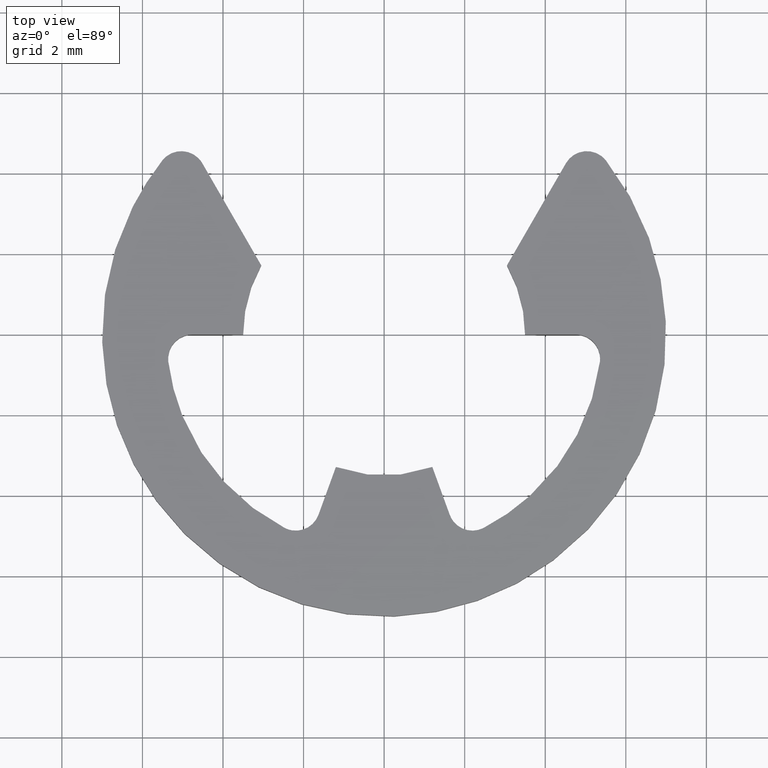
[diagram: clean part render]
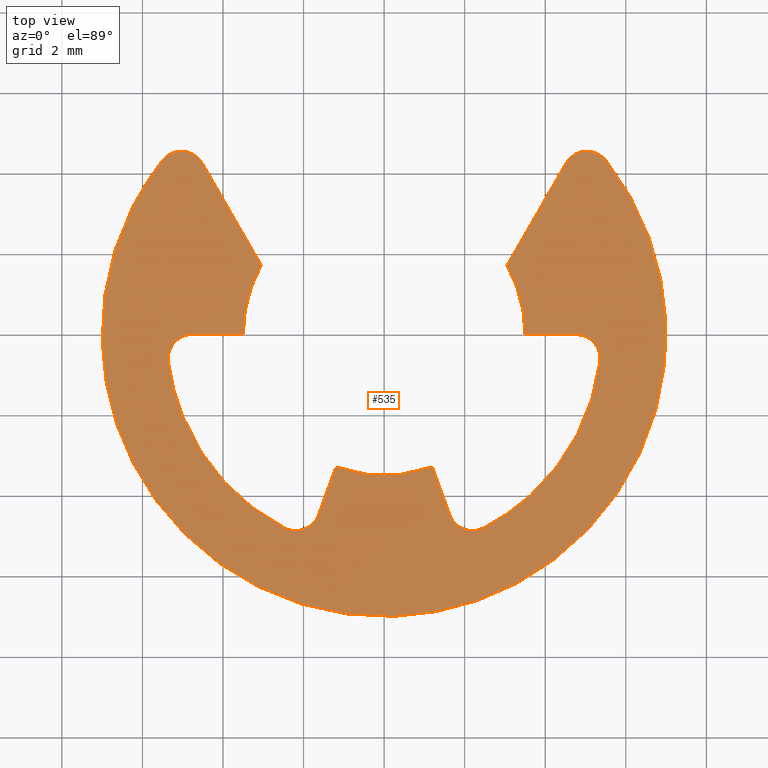
[diagram: same view with one face highlighted and labeled with its STEP entity id]
A machine part, top view. The second image highlights one B-rep face of the part: STEP entity #535.
In plain terms, the highlighted face is a freeform B-spline surface patch.
Its self-contained STEP definition (entity closure, byte-faithful):
#290=CARTESIAN_POINT('',(-7.680830195951259,-7.577049522920409,0.799988000000099));
#291=CARTESIAN_POINT('',(7.680830192763075,-7.577049522920409,0.799988000000099));
#292=CARTESIAN_POINT('',(-7.680830195951259,5.129593282450013,0.799988000000099));
#293=CARTESIAN_POINT('',(7.680830192763075,5.129593282450013,0.799988000000099));
#294=B_SPLINE_SURFACE_WITH_KNOTS('',1,1,((#290,#292),(#291,#293)),.UNSPECIFIED.,.F.,.F.,.U.,(2,2),(2,2),(0.0,15.361660388714339),(0.0,12.706642805370420),.UNSPECIFIED.);
#295=CARTESIAN_POINT('',(-5.505520051458170,4.323106401997531,0.799988000000140));
#296=VERTEX_POINT('',#295);
#297=CARTESIAN_POINT('',(-4.514004000000000,4.252556000000000,0.799988000000140));
#298=VERTEX_POINT('',#297);
#299=CARTESIAN_POINT('',(-5.505520051458169,4.323106401997530,0.799988000000140));
#300=CARTESIAN_POINT('',(-5.308784917364946,4.573650599816963,0.799988000000140));
#301=CARTESIAN_POINT('',(-4.991033556247954,4.551041297396017,0.799988000000140));
#302=CARTESIAN_POINT('',(-4.673282195130962,4.528431994975072,0.799988000000140));
#303=CARTESIAN_POINT('',(-4.514004000000000,4.252556000000000,0.799988000000140));
#311=(BOUNDED_CURVE()B_SPLINE_CURVE(2,(#299,#300,#301,#302,#303),.UNSPECIFIED.,.F.,.U.)B_SPLINE_CURVE_WITH_KNOTS((3,2,3),(0.0,0.500000000000000,1.0),.UNSPECIFIED.)CURVE()GEOMETRIC_REPRESENTATION_ITEM()RATIONAL_B_SPLINE_CURVE((1.0,0.883234793916496,1.0,0.883234793916496,1.0))REPRESENTATION_ITEM(''));
#312=EDGE_CURVE('',#296,#298,#311,.T.);
#313=ORIENTED_EDGE('',*,*,#312,.F.);
#314=CARTESIAN_POINT('',(5.505519803872589,4.323106717300275,0.799988000000140));
#315=VERTEX_POINT('',#314);
#316=CARTESIAN_POINT('',(5.505519803872588,4.323106717300274,0.799988000000140));
#317=CARTESIAN_POINT('',(9.496636180435846,-0.759620054814019,0.799988000000140));
#318=CARTESIAN_POINT('',(4.748318226620992,-5.143294082466886,0.799988000000140));
#319=CARTESIAN_POINT('',(0.000000272806137,-9.526968110119752,0.799988000000140));
#320=CARTESIAN_POINT('',(-4.748317932063014,-5.143294354404462,0.799988000000140));
#321=CARTESIAN_POINT('',(-9.496636136932169,-0.759620598689168,0.799988000000140));
#322=CARTESIAN_POINT('',(-5.505520051458172,4.323106401997528,0.799988000000140));
#330=(BOUNDED_CURVE()B_SPLINE_CURVE(2,(#316,#317,#318,#319,#320,#321,#322),.UNSPECIFIED.,.F.,.U.)B_SPLINE_CURVE_WITH_KNOTS((3,2,2,3),(0.0,0.333333333333333,0.666666666666667,1.0),.UNSPECIFIED.)CURVE()GEOMETRIC_REPRESENTATION_ITEM()RATIONAL_B_SPLINE_CURVE((1.0,0.734756316919382,1.0,0.734756316919382,1.0,0.734756316919382,1.0))REPRESENTATION_ITEM(''));
#331=EDGE_CURVE('',#315,#296,#330,.T.);
#332=ORIENTED_EDGE('',*,*,#331,.F.);
#333=CARTESIAN_POINT('',(4.514004202788870,4.252553770864495,0.799988000000140));
#334=VERTEX_POINT('',#333);
#335=CARTESIAN_POINT('',(4.514004202788867,4.252553770864496,0.799988000000140));
#336=CARTESIAN_POINT('',(4.673281809844327,4.528429733622624,0.799988000000140));
#337=CARTESIAN_POINT('',(4.991032795902336,4.551039771132551,0.799988000000140));
#338=CARTESIAN_POINT('',(5.308783781960344,4.573649808642479,0.799988000000140));
#339=CARTESIAN_POINT('',(5.505519803872589,4.323106717300275,0.799988000000140));
#347=(BOUNDED_CURVE()B_SPLINE_CURVE(2,(#335,#336,#337,#338,#339),.UNSPECIFIED.,.F.,.U.)B_SPLINE_CURVE_WITH_KNOTS((3,2,3),(0.0,0.500000000000000,1.0),.UNSPECIFIED.)CURVE()GEOMETRIC_REPRESENTATION_ITEM()RATIONAL_B_SPLINE_CURVE((1.0,0.883234990200231,1.0,0.883234990200231,1.0))REPRESENTATION_ITEM(''));
#348=EDGE_CURVE('',#334,#315,#347,.T.);
#349=ORIENTED_EDGE('',*,*,#348,.F.);
#350=CARTESIAN_POINT('',(3.049997000000000,1.716827000000195,0.799988000000140));
#351=VERTEX_POINT('',#350);
#352=CARTESIAN_POINT('',(4.514004202788870,4.252553770864495,0.799988000000140));
#353=CARTESIAN_POINT('',(3.049997000000000,1.716827000000195,0.799988000000140));
#354=QUASI_UNIFORM_CURVE('',1,(#352,#353),.UNSPECIFIED.,.F.,.U.);
#355=EDGE_CURVE('',#334,#351,#354,.T.);
#356=ORIENTED_EDGE('',*,*,#355,.T.);
#357=CARTESIAN_POINT('',(3.500000000000000,8.572244E-016,0.799988000000140));
#358=VERTEX_POINT('',#357);
#359=CARTESIAN_POINT('',(3.049997000000000,1.716827000000195,0.799988000000140));
#360=CARTESIAN_POINT('',(3.499998546452678,0.917388542506622,0.799988000000140));
#361=CARTESIAN_POINT('',(3.500000000000000,8.572244E-016,0.799988000000140));
#369=(BOUNDED_CURVE()B_SPLINE_CURVE(2,(#359,#360,#361),.UNSPECIFIED.,.F.,.U.)CURVE()GEOMETRIC_REPRESENTATION_ITEM()QUASI_UNIFORM_CURVE()RATIONAL_B_SPLINE_CURVE((1.0,0.967323251267172,1.0))REPRESENTATION_ITEM(''));
#370=EDGE_CURVE('',#351,#358,#369,.T.);
#371=ORIENTED_EDGE('',*,*,#370,.T.);
#372=CARTESIAN_POINT('',(4.762352000000000,0.0,0.799988000000140));
#373=VERTEX_POINT('',#372);
#374=CARTESIAN_POINT('',(3.500000000000000,8.572244E-016,0.799988000000140));
#375=CARTESIAN_POINT('',(4.762352000000000,0.0,0.799988000000140));
#376=QUASI_UNIFORM_CURVE('',1,(#374,#375),.UNSPECIFIED.,.F.,.U.);
#377=EDGE_CURVE('',#358,#373,#376,.T.);
#378=ORIENTED_EDGE('',*,*,#377,.T.);
#379=CARTESIAN_POINT('',(5.357645964854310,-0.674999636050790,0.799988000000140));
#380=VERTEX_POINT('',#379);
#381=CARTESIAN_POINT('',(4.762352000000000,0.0,0.799988000000140));
#382=CARTESIAN_POINT('',(5.033201930716102,0.000000199055792,0.799988000000140));
#383=CARTESIAN_POINT('',(5.212352212016909,-0.203137043744975,0.799988000000140));
#384=CARTESIAN_POINT('',(5.391502493317716,-0.406274286545742,0.799988000000140));
#385=CARTESIAN_POINT('',(5.357645964854310,-0.674999636050790,0.799988000000140));
#393=(BOUNDED_CURVE()B_SPLINE_CURVE(2,(#381,#382,#383,#384,#385),.UNSPECIFIED.,.F.,.U.)B_SPLINE_CURVE_WITH_KNOTS((3,2,3),(0.0,0.500000000000000,1.0),.UNSPECIFIED.)CURVE()GEOMETRIC_REPRESENTATION_ITEM()RATIONAL_B_SPLINE_CURVE((1.0,0.911437717864374,1.0,0.911437717864374,1.0))REPRESENTATION_ITEM(''));
#394=EDGE_CURVE('',#373,#380,#393,.T.);
#395=ORIENTED_EDGE('',*,*,#394,.T.);
#396=CARTESIAN_POINT('',(2.466713181127335,-4.803678390780620,0.799988000000140));
#397=VERTEX_POINT('',#396);
#398=CARTESIAN_POINT('',(5.357645964854310,-0.674999636050790,0.799988000000140));
#399=CARTESIAN_POINT('',(5.001469452492112,-3.502068208566773,0.799988000000140));
#400=CARTESIAN_POINT('',(2.466713181127333,-4.803678390780618,0.799988000000140));
#408=(BOUNDED_CURVE()B_SPLINE_CURVE(2,(#398,#399,#400),.UNSPECIFIED.,.F.,.U.)CURVE()GEOMETRIC_REPRESENTATION_ITEM()QUASI_UNIFORM_CURVE()RATIONAL_B_SPLINE_CURVE((1.0,0.884424151352078,1.0))REPRESENTATION_ITEM(''));
#409=EDGE_CURVE('',#380,#397,#408,.T.);
#410=ORIENTED_EDGE('',*,*,#409,.T.);
#411=CARTESIAN_POINT('',(1.628819395293825,-4.475147997431360,0.799988000000140));
#412=VERTEX_POINT('',#411);
#413=CARTESIAN_POINT('',(2.466713181127335,-4.803678390780620,0.799988000000140));
#414=CARTESIAN_POINT('',(2.225773561045906,-4.927401743901641,0.799988000000140));
#415=CARTESIAN_POINT('',(1.973614424377073,-4.828532444182820,0.799988000000140));
#416=CARTESIAN_POINT('',(1.721455287708239,-4.729663144464000,0.799988000000140));
#417=CARTESIAN_POINT('',(1.628819395293824,-4.475147997431360,0.799988000000140));
#425=(BOUNDED_CURVE()B_SPLINE_CURVE(2,(#413,#414,#415,#416,#417),.UNSPECIFIED.,.F.,.U.)B_SPLINE_CURVE_WITH_KNOTS((3,2,3),(0.0,0.500000000000000,1.0),.UNSPECIFIED.)CURVE()GEOMETRIC_REPRESENTATION_ITEM()RATIONAL_B_SPLINE_CURVE((1.0,0.911438050522378,1.0,0.911438050522378,1.0))REPRESENTATION_ITEM(''));
#426=EDGE_CURVE('',#397,#412,#425,.T.);
#427=ORIENTED_EDGE('',*,*,#426,.T.);
#428=CARTESIAN_POINT('',(1.197069000000000,-3.288924999999810,0.799988000000140));
#429=VERTEX_POINT('',#428);
#430=CARTESIAN_POINT('',(1.628819395293825,-4.475147997431360,0.799988000000140));
#431=CARTESIAN_POINT('',(1.197069000000000,-3.288924999999810,0.799988000000140));
#432=QUASI_UNIFORM_CURVE('',1,(#430,#431),.UNSPECIFIED.,.F.,.U.);
#433=EDGE_CURVE('',#412,#429,#432,.T.);
#434=ORIENTED_EDGE('',*,*,#433,.T.);
#435=CARTESIAN_POINT('',(-1.197072395923980,-3.288923483287020,0.799988000000140));
#436=VERTEX_POINT('',#435);
#437=CARTESIAN_POINT('',(1.197069000000000,-3.288924999999810,0.799988000000140));
#438=CARTESIAN_POINT('',(-0.000001973981110,-3.724622265994098,0.799988000000140));
#439=CARTESIAN_POINT('',(-1.197072395923980,-3.288923483287019,0.799988000000140));
#447=(BOUNDED_CURVE()B_SPLINE_CURVE(2,(#437,#438,#439),.UNSPECIFIED.,.F.,.U.)CURVE()GEOMETRIC_REPRESENTATION_ITEM()QUASI_UNIFORM_CURVE()RATIONAL_B_SPLINE_CURVE((1.0,0.939692605060815,1.0))REPRESENTATION_ITEM(''));
#448=EDGE_CURVE('',#429,#436,#447,.T.);
#449=ORIENTED_EDGE('',*,*,#448,.T.);
#450=CARTESIAN_POINT('',(-1.628820000000000,-4.475144000000000,0.799988000000140));
#451=VERTEX_POINT('',#450);
#452=CARTESIAN_POINT('',(-1.197072395923980,-3.288923483287020,0.799988000000140));
#453=CARTESIAN_POINT('',(-1.628820000000000,-4.475144000000000,0.799988000000140));
#454=QUASI_UNIFORM_CURVE('',1,(#452,#453),.UNSPECIFIED.,.F.,.U.);
#455=EDGE_CURVE('',#436,#451,#454,.T.);
#456=ORIENTED_EDGE('',*,*,#455,.T.);
#457=CARTESIAN_POINT('',(-2.466716259072880,-4.803676810238750,0.799988000000140));
#458=VERTEX_POINT('',#457);
#459=CARTESIAN_POINT('',(-1.628820000000000,-4.475144000000000,0.799988000000140));
#460=CARTESIAN_POINT('',(-1.721455040402783,-4.729660935348904,0.799988000000140));
#461=CARTESIAN_POINT('',(-1.973615335047506,-4.828531087035394,0.799988000000140));
#462=CARTESIAN_POINT('',(-2.225775629692229,-4.927401238721886,0.799988000000140));
#463=CARTESIAN_POINT('',(-2.466716259072879,-4.803676810238747,0.799988000000140));
#471=(BOUNDED_CURVE()B_SPLINE_CURVE(2,(#459,#460,#461,#462,#463),.UNSPECIFIED.,.F.,.U.)B_SPLINE_CURVE_WITH_KNOTS((3,2,3),(0.0,0.500000000000000,1.0),.UNSPECIFIED.)CURVE()GEOMETRIC_REPRESENTATION_ITEM()RATIONAL_B_SPLINE_CURVE((1.0,0.911437259242175,1.0,0.911437259242175,1.0))REPRESENTATION_ITEM(''));
#472=EDGE_CURVE('',#451,#458,#471,.T.);
#473=ORIENTED_EDGE('',*,*,#472,.T.);
#474=CARTESIAN_POINT('',(-5.357646404905800,-0.675000000000000,0.799988000000140));
#475=VERTEX_POINT('',#474);
#476=CARTESIAN_POINT('',(-2.466716259072878,-4.803676810238748,0.799988000000140));
#477=CARTESIAN_POINT('',(-5.001469554906101,-3.502066103572656,0.799988000000140));
#478=CARTESIAN_POINT('',(-5.357646404905796,-0.674999999999999,0.799988000000140));
#486=(BOUNDED_CURVE()B_SPLINE_CURVE(2,(#476,#477,#478),.UNSPECIFIED.,.F.,.U.)CURVE()GEOMETRIC_REPRESENTATION_ITEM()QUASI_UNIFORM_CURVE()RATIONAL_B_SPLINE_CURVE((1.0,0.884424314091896,1.0))REPRESENTATION_ITEM(''));
#487=EDGE_CURVE('',#458,#475,#486,.T.);
#488=ORIENTED_EDGE('',*,*,#487,.T.);
#489=CARTESIAN_POINT('',(-4.762352359916260,0.0,0.799988000000140));
#490=VERTEX_POINT('',#489);
#491=CARTESIAN_POINT('',(-5.357646404905792,-0.674999999999999,0.799988000000140));
#492=CARTESIAN_POINT('',(-5.391502622129178,-0.406274606680622,0.799988000000140));
#493=CARTESIAN_POINT('',(-5.212352359916260,-0.203137303340311,0.799988000000140));
#494=CARTESIAN_POINT('',(-5.033202097703342,0.0,0.799988000000140));
#495=CARTESIAN_POINT('',(-4.762352359916260,0.0,0.799988000000140));
#503=(BOUNDED_CURVE()B_SPLINE_CURVE(2,(#491,#492,#493,#494,#495),.UNSPECIFIED.,.F.,.U.)B_SPLINE_CURVE_WITH_KNOTS((3,2,3),(0.0,0.500000000000000,1.0),.UNSPECIFIED.)CURVE()GEOMETRIC_REPRESENTATION_ITEM()RATIONAL_B_SPLINE_CURVE((1.0,0.911437827766148,1.0,0.911437827766148,1.0))REPRESENTATION_ITEM(''));
#504=EDGE_CURVE('',#475,#490,#503,.T.);
#505=ORIENTED_EDGE('',*,*,#504,.T.);
#506=CARTESIAN_POINT('',(-3.500000000000000,0.0,0.799988000000140));
#507=VERTEX_POINT('',#506);
#508=CARTESIAN_POINT('',(-4.762352359916260,0.0,0.799988000000140));
#509=CARTESIAN_POINT('',(-3.500000000000000,0.0,0.799988000000140));
#510=QUASI_UNIFORM_CURVE('',1,(#508,#509),.UNSPECIFIED.,.F.,.U.);
#511=EDGE_CURVE('',#490,#507,#510,.T.);
#512=ORIENTED_EDGE('',*,*,#511,.T.);
#513=CARTESIAN_POINT('',(-3.050001544194635,1.716825728025515,0.799988000000140));
#514=VERTEX_POINT('',#513);
#515=CARTESIAN_POINT('',(-3.500000000000000,0.0,0.799988000000140));
#516=CARTESIAN_POINT('',(-3.500000000000000,0.917387577322797,0.799988000000140));
#517=CARTESIAN_POINT('',(-3.050001544194636,1.716825728025514,0.799988000000140));
#525=(BOUNDED_CURVE()B_SPLINE_CURVE(2,(#515,#516,#517),.UNSPECIFIED.,.F.,.U.)CURVE()GEOMETRIC_REPRESENTATION_ITEM()QUASI_UNIFORM_CURVE()RATIONAL_B_SPLINE_CURVE((1.0,0.967323372153035,1.0))REPRESENTATION_ITEM(''));
#526=EDGE_CURVE('',#507,#514,#525,.T.);
#527=ORIENTED_EDGE('',*,*,#526,.T.);
#528=CARTESIAN_POINT('',(-3.050001544194635,1.716825728025515,0.799988000000140));
#529=CARTESIAN_POINT('',(-4.514004000000000,4.252556000000000,0.799988000000140));
#530=QUASI_UNIFORM_CURVE('',1,(#528,#529),.UNSPECIFIED.,.F.,.U.);
#531=EDGE_CURVE('',#514,#298,#530,.T.);
#532=ORIENTED_EDGE('',*,*,#531,.T.);
#533=EDGE_LOOP('',(#313,#332,#349,#356,#371,#378,#395,#410,#427,#434,#449,#456,#473,#488,#505,#512,#527,#532));
#534=FACE_OUTER_BOUND('',#533,.T.);
#535=ADVANCED_FACE('',(#534),#294,.T.);